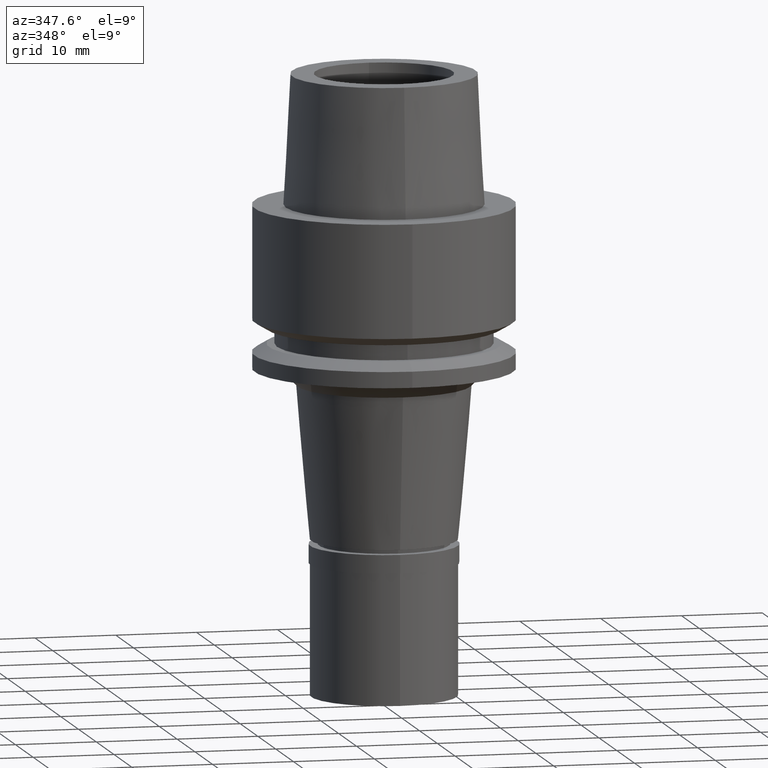
[diagram: clean part render]
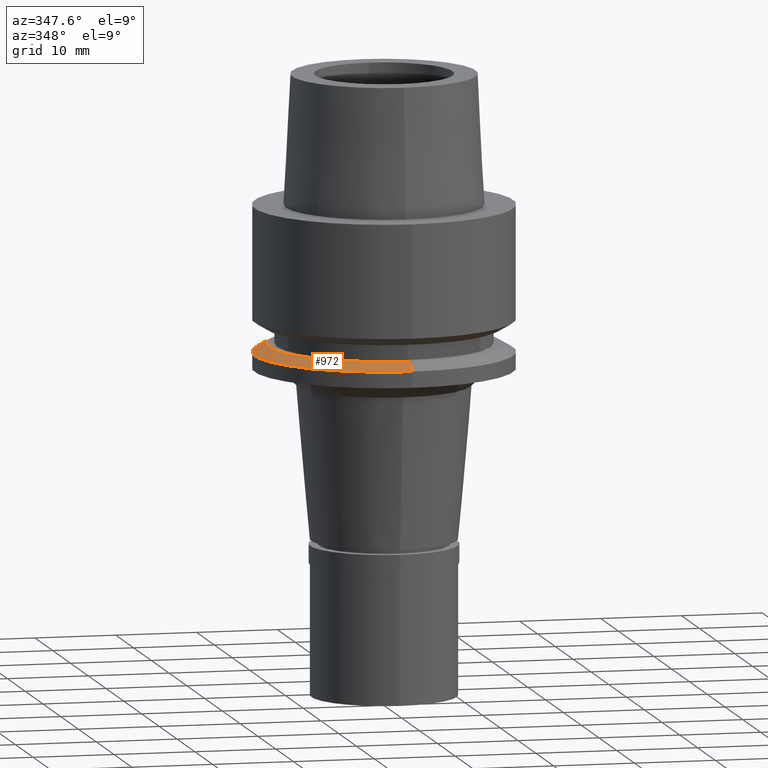
[diagram: same view with one face highlighted and labeled with its STEP entity id]
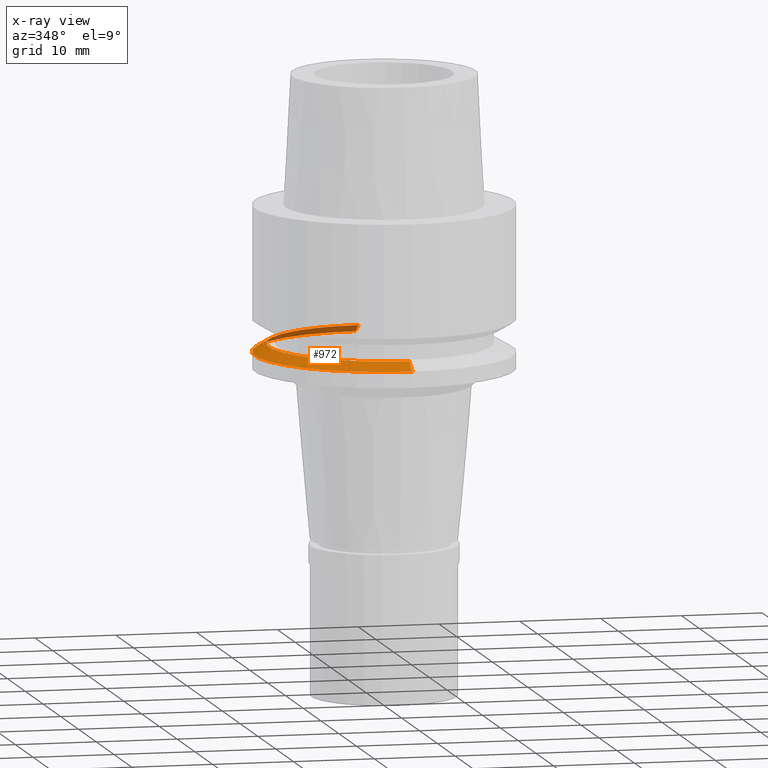
[diagram: x-ray of the same camera — body ghosted, the highlighted face saturated]
A machine part, auxiliary view. The second image highlights one B-rep face of the part: STEP entity #972.
The next image is the same camera in x-ray: the body ghosted, the highlighted face saturated — about 19% of this face is hidden behind the body in this view.
In plain terms, the highlighted conical surface has half-angle 60 deg.
Its self-contained STEP definition (entity closure, byte-faithful):
#67 = AXIS2_PLACEMENT_3D ( 'NONE', #1641, #1655, #2662 ) ;
#71 = EDGE_CURVE ( 'NONE', #2420, #1524, #1105, .T. ) ;
#281 = CIRCLE ( 'NONE', #67, 16.00000000000000000 ) ;
#318 = CONICAL_SURFACE ( 'NONE', #495, 15.11602540378000015, 1.047197551196400456 ) ;
#495 = AXIS2_PLACEMENT_3D ( 'NONE', #2463, #2081, #2276 ) ;
#497 = ORIENTED_EDGE ( 'NONE', *, *, #2258, .T. ) ;
#639 = DIRECTION ( 'NONE',  ( 0.0000000000000000000, 0.8660254037847886499, -0.4999999999993937627 ) ) ;
#644 = EDGE_CURVE ( 'NONE', #1197, #1503, #1132, .T. ) ;
#688 = DIRECTION ( 'NONE',  ( 0.0000000000000000000, -0.8660254037847886499, -0.4999999999993937627 ) ) ;
#750 = EDGE_LOOP ( 'NONE', ( #1303, #1906, #497, #1529 ) ) ;
#752 = CARTESIAN_POINT ( 'NONE',  ( 0.0000000000000000000, 0.0000000000000000000, -17.00000000000000000 ) ) ;
#835 = CARTESIAN_POINT ( 'NONE',  ( 0.0000000000000000000, 16.00000000000000000, -18.02072594216000212 ) ) ;
#972 = ADVANCED_FACE ( 'NONE', ( #2265 ), #318, .T. ) ;
#1061 = EDGE_CURVE ( 'NONE', #1503, #1524, #281, .T. ) ;
#1105 = LINE ( 'NONE', #1307, #2149 ) ;
#1132 = LINE ( 'NONE', #1934, #2543 ) ;
#1197 = VERTEX_POINT ( 'NONE', #2571 ) ;
#1226 = CARTESIAN_POINT ( 'NONE',  ( 0.0000000000000000000, -16.00000000000000000, -18.02072594216000212 ) ) ;
#1245 = AXIS2_PLACEMENT_3D ( 'NONE', #752, #1382, #2626 ) ;
#1303 = ORIENTED_EDGE ( 'NONE', *, *, #1061, .F. ) ;
#1307 = CARTESIAN_POINT ( 'NONE',  ( 0.0000000000000000000, 14.23205080756999941, -17.00000000000000000 ) ) ;
#1382 = DIRECTION ( 'NONE',  ( 0.0000000000000000000, 0.0000000000000000000, -1.000000000000000000 ) ) ;
#1503 = VERTEX_POINT ( 'NONE', #1226 ) ;
#1524 = VERTEX_POINT ( 'NONE', #835 ) ;
#1529 = ORIENTED_EDGE ( 'NONE', *, *, #71, .T. ) ;
#1641 = CARTESIAN_POINT ( 'NONE',  ( 0.0000000000000000000, 0.0000000000000000000, -18.02072594216000212 ) ) ;
#1655 = DIRECTION ( 'NONE',  ( 0.0000000000000000000, 0.0000000000000000000, -1.000000000000000000 ) ) ;
#1818 = CIRCLE ( 'NONE', #1245, 14.23205080756999941 ) ;
#1906 = ORIENTED_EDGE ( 'NONE', *, *, #644, .F. ) ;
#1934 = CARTESIAN_POINT ( 'NONE',  ( 0.0000000000000000000, -14.23205080756999941, -17.00000000000000000 ) ) ;
#2081 = DIRECTION ( 'NONE',  ( 0.0000000000000000000, 0.0000000000000000000, -1.000000000000000000 ) ) ;
#2149 = VECTOR ( 'NONE', #639, 1000.000000000000000 ) ;
#2258 = EDGE_CURVE ( 'NONE', #1197, #2420, #1818, .T. ) ;
#2265 = FACE_OUTER_BOUND ( 'NONE', #750, .T. ) ;
#2276 = DIRECTION ( 'NONE',  ( 0.0000000000000000000, -1.000000000000000000, 0.0000000000000000000 ) ) ;
#2405 = CARTESIAN_POINT ( 'NONE',  ( 0.0000000000000000000, 14.23205080756999941, -17.00000000000000000 ) ) ;
#2420 = VERTEX_POINT ( 'NONE', #2405 ) ;
#2463 = CARTESIAN_POINT ( 'NONE',  ( 0.0000000000000000000, 0.0000000000000000000, -17.51036297107999928 ) ) ;
#2543 = VECTOR ( 'NONE', #688, 1000.000000000000000 ) ;
#2571 = CARTESIAN_POINT ( 'NONE',  ( 0.0000000000000000000, -14.23205080756999941, -17.00000000000000000 ) ) ;
#2626 = DIRECTION ( 'NONE',  ( 0.0000000000000000000, -1.000000000000000000, 0.0000000000000000000 ) ) ;
#2662 = DIRECTION ( 'NONE',  ( 0.0000000000000000000, -1.000000000000000000, 0.0000000000000000000 ) ) ;